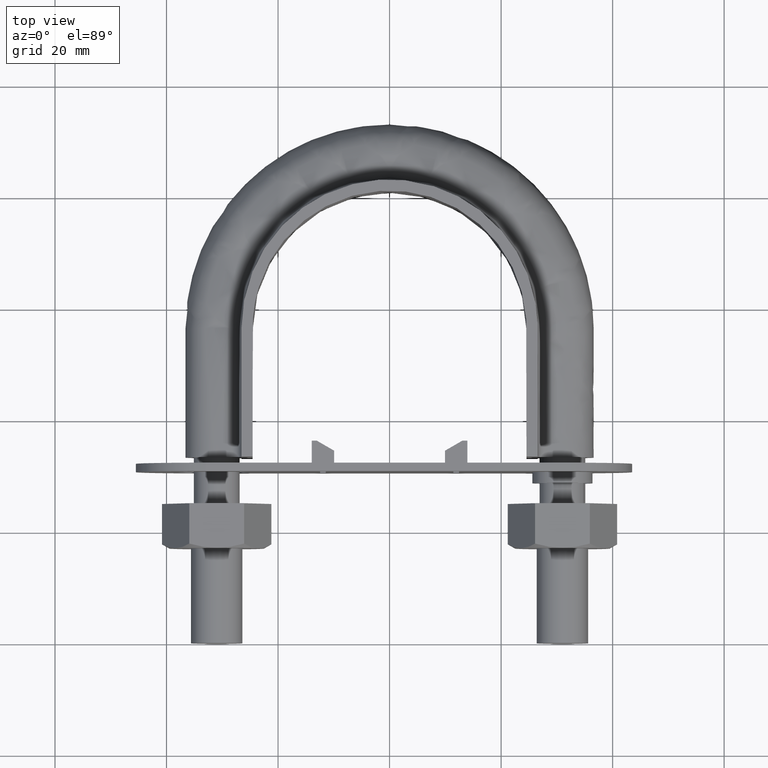
[diagram: clean part render]
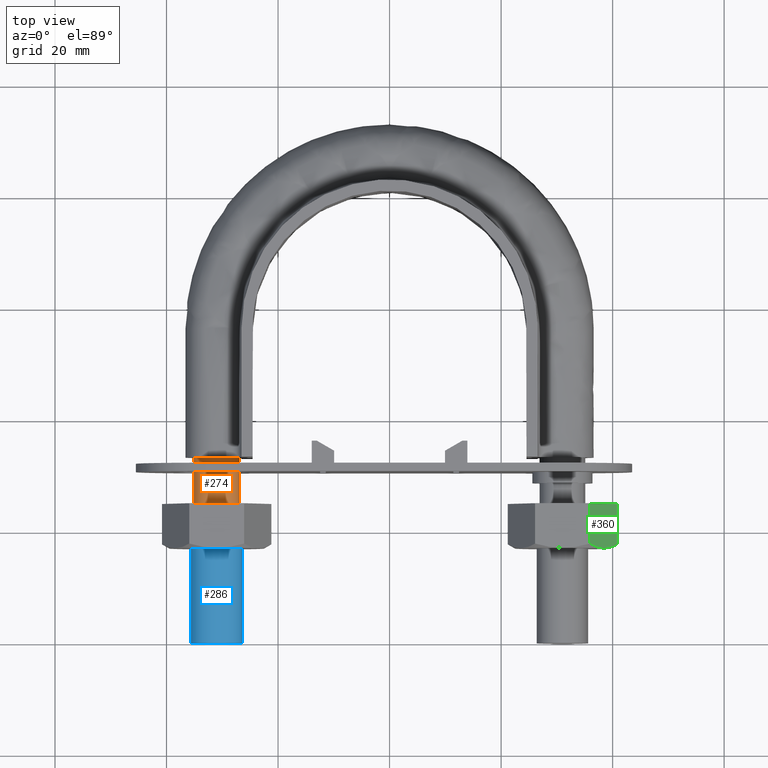
[diagram: same view with three faces highlighted in distinct colors, each labeled with its STEP entity id]
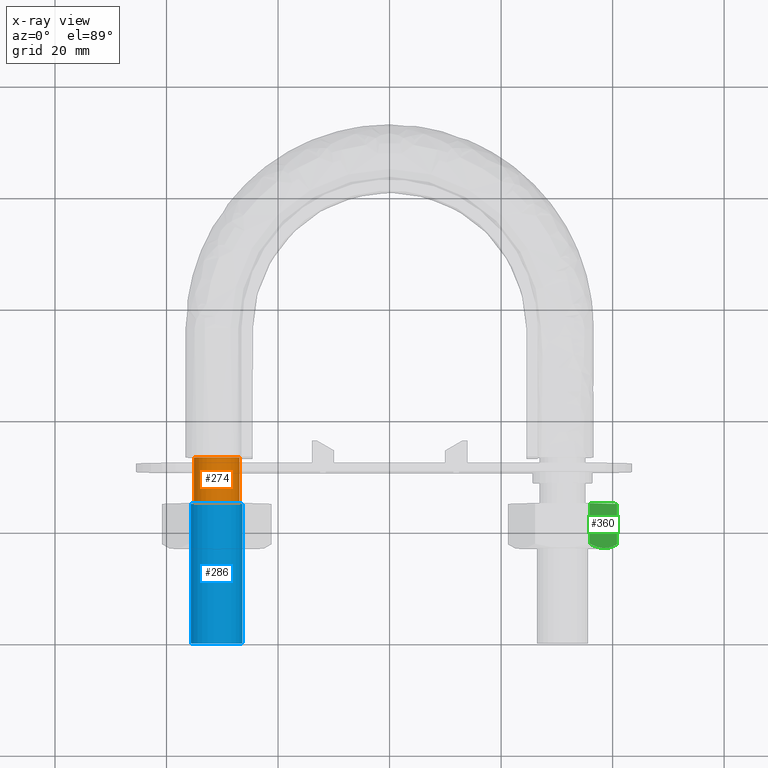
[diagram: x-ray of the same camera — body ghosted, the three highlighted faces saturated]
A machine part, top view with three faces highlighted in distinct colors.
The next image is the same camera in x-ray (body ghosted, the three faces saturated) — at least one of them is partly hidden behind the body in this view.
Their STEP definitions:

[orange] entity #274 — the highlighted cylindrical surface (bore or boss wall) has radius 4.1 mm, axis along (-0, -1, -0).
#274 = ADVANCED_FACE( '', ( #398, #399 ), #400, .T. );
#398 = FACE_OUTER_BOUND( '', #1331, .T. );
#399 = FACE_OUTER_BOUND( '', #1332, .T. );
#400 = CYLINDRICAL_SURFACE( '', #1333, 4.10000000000000 );
#1331 = EDGE_LOOP( '', ( #1778 ) );
#1332 = EDGE_LOOP( '', ( #1779, #1780, #1781, #1782, #1783, #1784, #1785 ) );
#1333 = AXIS2_PLACEMENT_3D( '', #1786, #1787, #1788 );
#1778 = ORIENTED_EDGE( '', *, *, #2559, .T. );
#1779 = ORIENTED_EDGE( '', *, *, #2560, .T. );
#1780 = ORIENTED_EDGE( '', *, *, #2561, .T. );
#1781 = ORIENTED_EDGE( '', *, *, #2562, .T. );
#1782 = ORIENTED_EDGE( '', *, *, #2563, .T. );
#1783 = ORIENTED_EDGE( '', *, *, #2564, .T. );
#1784 = ORIENTED_EDGE( '', *, *, #2565, .T. );
#1785 = ORIENTED_EDGE( '', *, *, #2566, .T. );
#1786 = CARTESIAN_POINT( '', ( -31.0000000000000, 33.3000000000000, 1.03938464280674E-014 ) );
#1787 = DIRECTION( '', ( -2.44921270764475E-016, -1.00000000000000, -3.06151588455594E-016 ) );
#1788 = DIRECTION( '', ( 1.00000000000000, -2.44921270764475E-016, -3.74915180455534E-032 ) );
#2559 = EDGE_CURVE( '', #2809, #2809, #2810, .T. );
#2560 = EDGE_CURVE( '', #2811, #2812, #2813, .T. );
#2561 = EDGE_CURVE( '', #2812, #2814, #2815, .T. );
#2562 = EDGE_CURVE( '', #2814, #2816, #2817, .T. );
#2563 = EDGE_CURVE( '', #2816, #2818, #2819, .T. );
#2564 = EDGE_CURVE( '', #2818, #2820, #2821, .T. );
#2565 = EDGE_CURVE( '', #2820, #2822, #2823, .T. );
#2566 = EDGE_CURVE( '', #2822, #2811, #2824, .T. );
#2809 = VERTEX_POINT( '', #3405 );
#2810 = CIRCLE( '', #3406, 4.10000000000000 );
#2811 = VERTEX_POINT( '', #3407 );
#2812 = VERTEX_POINT( '', #3408 );
#2813 = CIRCLE( '', #3409, 4.10000000000000 );
#2814 = VERTEX_POINT( '', #3410 );
#2815 = CIRCLE( '', #3411, 4.10000000000000 );
#2816 = VERTEX_POINT( '', #3412 );
#2817 = CIRCLE( '', #3413, 4.10000000000000 );
#2818 = VERTEX_POINT( '', #3414 );
#2819 = CIRCLE( '', #3415, 4.10000000000000 );
#2820 = VERTEX_POINT( '', #3416 );
#2821 = CIRCLE( '', #3417, 4.10000000000000 );
#2822 = VERTEX_POINT( '', #3418 );
#2823 = CIRCLE( '', #3419, 4.10000000000000 );
#2824 = CIRCLE( '', #3420, 4.10000000000000 );
#3405 = CARTESIAN_POINT( '', ( -31.0000000000000, 25.0000000000000, 4.10000000000001 ) );
#3406 = AXIS2_PLACEMENT_3D( '', #4055, #4056, #4057 );
#3407 = CARTESIAN_POINT( '', ( -26.9000000000000, 33.3000000000000, 5.33492735711505E-014 ) );
#3408 = CARTESIAN_POINT( '', ( -28.4436918123920, 33.3000000000000, 3.20550907812911 ) );
#3409 = AXIS2_PLACEMENT_3D( '', #4058, #4059, #4060 );
#3410 = CARTESIAN_POINT( '', ( -31.9123358292377, 33.3000000000000, 3.99720443994166 ) );
#3411 = AXIS2_PLACEMENT_3D( '', #4061, #4062, #4063 );
#3412 = CARTESIAN_POINT( '', ( -34.6939723584000, 33.3000000000000, 1.77892333038180 ) );
#3413 = AXIS2_PLACEMENT_3D( '', #4064, #4065, #4066 );
#3414 = CARTESIAN_POINT( '', ( -34.6939723583862, 33.3000000000000, -1.77892333041036 ) );
#3415 = AXIS2_PLACEMENT_3D( '', #4067, #4068, #4069 );
#3416 = CARTESIAN_POINT( '', ( -31.9123358292209, 33.3000000000000, -3.99720443994546 ) );
#3417 = AXIS2_PLACEMENT_3D( '', #4070, #4071, #4072 );
#3418 = CARTESIAN_POINT( '', ( -28.4436918123794, 33.3000000000000, -3.20550907811911 ) );
#3419 = AXIS2_PLACEMENT_3D( '', #4073, #4074, #4075 );
#3420 = AXIS2_PLACEMENT_3D( '', #4076, #4077, #4078 );
#4055 = CARTESIAN_POINT( '', ( -31.0000000000000, 25.0000000000000, 7.85278824388600E-015 ) );
#4056 = DIRECTION( '', ( 2.44921270764475E-016, 1.00000000000000, 3.06151588455594E-016 ) );
#4057 = DIRECTION( '', ( -3.74915180455534E-032, -3.06151588455594E-016, 1.00000000000000 ) );
#4058 = CARTESIAN_POINT( '', ( -31.0000000000000, 33.3000000000000, 1.03938464280674E-014 ) );
#4059 = DIRECTION( '', ( -2.44921270764475E-016, -1.00000000000000, -3.06151588455594E-016 ) );
#4060 = DIRECTION( '', ( 1.00000000000000, -2.44921270764475E-016, -3.74915180455534E-032 ) );
#4061 = CARTESIAN_POINT( '', ( -31.0000000000000, 33.3000000000000, 1.03938464280674E-014 ) );
#4062 = DIRECTION( '', ( -2.44921270764475E-016, -1.00000000000000, -3.06151588455594E-016 ) );
#4063 = DIRECTION( '', ( 1.00000000000000, -2.44921270764475E-016, -3.74915180455534E-032 ) );
#4064 = CARTESIAN_POINT( '', ( -31.0000000000000, 33.3000000000000, 1.03938464280674E-014 ) );
#4065 = DIRECTION( '', ( -2.44921270764475E-016, -1.00000000000000, -3.06151588455594E-016 ) );
#4066 = DIRECTION( '', ( 1.00000000000000, -2.44921270764475E-016, -3.74915180455534E-032 ) );
#4067 = CARTESIAN_POINT( '', ( -31.0000000000000, 33.3000000000000, 1.03938464280674E-014 ) );
#4068 = DIRECTION( '', ( -2.44921270764475E-016, -1.00000000000000, -3.06151588455594E-016 ) );
#4069 = DIRECTION( '', ( 1.00000000000000, -2.44921270764475E-016, -3.74915180455534E-032 ) );
#4070 = CARTESIAN_POINT( '', ( -31.0000000000000, 33.3000000000000, 1.03938464280674E-014 ) );
#4071 = DIRECTION( '', ( -2.44921270764475E-016, -1.00000000000000, -3.06151588455594E-016 ) );
#4072 = DIRECTION( '', ( 1.00000000000000, -2.44921270764475E-016, -3.74915180455534E-032 ) );
#4073 = CARTESIAN_POINT( '', ( -31.0000000000000, 33.3000000000000, 1.03938464280674E-014 ) );
#4074 = DIRECTION( '', ( -2.44921270764475E-016, -1.00000000000000, -3.06151588455594E-016 ) );
#4075 = DIRECTION( '', ( 1.00000000000000, -2.44921270764475E-016, -3.74915180455534E-032 ) );
#4076 = CARTESIAN_POINT( '', ( -31.0000000000000, 33.3000000000000, 1.03938464280674E-014 ) );
#4077 = DIRECTION( '', ( -2.44921270764475E-016, -1.00000000000000, -3.06151588455594E-016 ) );
#4078 = DIRECTION( '', ( 1.00000000000000, -2.44921270764475E-016, -3.74915180455534E-032 ) );

[blue] entity #286 — the highlighted cylindrical surface (bore or boss wall) has radius 4.6 mm, axis along (-0, -1, -0).
#286 = ADVANCED_FACE( '', ( #426, #427 ), #428, .T. );
#426 = FACE_OUTER_BOUND( '', #1508, .T. );
#427 = FACE_OUTER_BOUND( '', #1509, .T. );
#428 = CYLINDRICAL_SURFACE( '', #1510, 4.60000000000000 );
#1508 = EDGE_LOOP( '', ( #1859 ) );
#1509 = EDGE_LOOP( '', ( #1860 ) );
#1510 = AXIS2_PLACEMENT_3D( '', #1861, #1862, #1863 );
#1859 = ORIENTED_EDGE( '', *, *, #2590, .F. );
#1860 = ORIENTED_EDGE( '', *, *, #2569, .T. );
#1861 = CARTESIAN_POINT( '', ( -31.0000000000000, 25.0000000000000, 7.85278824388600E-015 ) );
#1862 = DIRECTION( '', ( -2.44921270764475E-016, -1.00000000000000, -3.06151588455594E-016 ) );
#1863 = DIRECTION( '', ( 1.00000000000000, -2.44921270764475E-016, -3.74915180455534E-032 ) );
#2569 = EDGE_CURVE( '', #2829, #2829, #2830, .T. );
#2590 = EDGE_CURVE( '', #2857, #2857, #2858, .T. );
#2829 = VERTEX_POINT( '', #3428 );
#2830 = CIRCLE( '', #3429, 4.60000000000000 );
#2857 = VERTEX_POINT( '', #3495 );
#2858 = CIRCLE( '', #3496, 4.60000000000000 );
#3428 = CARTESIAN_POINT( '', ( -26.4000000000000, 25.0000000000000, 7.85278824388600E-015 ) );
#3429 = AXIS2_PLACEMENT_3D( '', #4082, #4083, #4084 );
#3495 = CARTESIAN_POINT( '', ( -26.4000000000000, 6.46592154818215E-015, 1.98998532496137E-016 ) );
#3496 = AXIS2_PLACEMENT_3D( '', #4106, #4107, #4108 );
#4082 = CARTESIAN_POINT( '', ( -31.0000000000000, 25.0000000000000, 7.85278824388600E-015 ) );
#4083 = DIRECTION( '', ( -2.44921270764475E-016, -1.00000000000000, -3.06151588455594E-016 ) );
#4084 = DIRECTION( '', ( 1.00000000000000, -2.44921270764475E-016, -3.74915180455534E-032 ) );
#4106 = CARTESIAN_POINT( '', ( -31.0000000000000, 7.59255939369874E-015, 1.98998532496137E-016 ) );
#4107 = DIRECTION( '', ( -2.44921270764475E-016, -1.00000000000000, -3.06151588455594E-016 ) );
#4108 = DIRECTION( '', ( 1.00000000000000, -2.44921270764475E-016, -3.74915180455534E-032 ) );

[green] entity #360 — the highlighted planar face has unit normal (-0.866, 0, -0.5).
#360 = ADVANCED_FACE( '', ( #593 ), #594, .F. );
#593 = FACE_OUTER_BOUND( '', #1675, .T. );
#594 = PLANE( '', #1676 );
#1675 = EDGE_LOOP( '', ( #2394, #2395, #2396, #2397, #2398 ) );
#1676 = AXIS2_PLACEMENT_3D( '', #2399, #2400, #2401 );
#2394 = ORIENTED_EDGE( '', *, *, #2745, .F. );
#2395 = ORIENTED_EDGE( '', *, *, #2746, .F. );
#2396 = ORIENTED_EDGE( '', *, *, #2744, .F. );
#2397 = ORIENTED_EDGE( '', *, *, #2747, .F. );
#2398 = ORIENTED_EDGE( '', *, *, #2748, .F. );
#2399 = CARTESIAN_POINT( '', ( 35.9074772880412, 25.0000000000000, 8.50000000004037 ) );
#2400 = DIRECTION( '', ( -0.866025403780302, 3.65183836638180E-016, -0.500000000007165 ) );
#2401 = DIRECTION( '', ( -0.500000000007165, 0.000000000000000, 0.866025403780302 ) );
#2744 = EDGE_CURVE( '', #3117, #3112, #3119, .T. );
#2745 = EDGE_CURVE( '', #3120, #3121, #3122, .T. );
#2746 = EDGE_CURVE( '', #3112, #3120, #3123, .T. );
#2747 = EDGE_CURVE( '', #3124, #3117, #3125, .T. );
#2748 = EDGE_CURVE( '', #3121, #3124, #3126, .F. );
#3112 = VERTEX_POINT( '', #3918 );
#3117 = VERTEX_POINT( '', #3924 );
#3119 = LINE( '', #3926, #3927 );
#3120 = VERTEX_POINT( '', #3928 );
#3121 = VERTEX_POINT( '', #3929 );
#3122 = B_SPLINE_CURVE_WITH_KNOTS( '', 3, ( #3930, #3931, #3932, #3933, #3934, #3935 ), .UNSPECIFIED., .F., .F., ( 4, 2, 4 ), ( 1.74337551706054E-017, 0.00246745482903624, 0.00493490965807245 ), .UNSPECIFIED. );
#3123 = B_SPLINE_CURVE_WITH_KNOTS( '', 3, ( #3936, #3937, #3938, #3939, #3940, #3941 ), .UNSPECIFIED., .F., .F., ( 4, 2, 4 ), ( 3.24912493265351E-016, 0.00246745482903621, 0.00493490965807210 ), .UNSPECIFIED. );
#3124 = VERTEX_POINT( '', #3942 );
#3125 = LINE( '', #3943, #3944 );
#3126 = LINE( '', #3945, #3946 );
#3918 = CARTESIAN_POINT( '', ( 40.7999656118188, 17.7505553499467, 0.0259616479819914 ) );
#3924 = CARTESIAN_POINT( '', ( 40.7999656118189, 25.0000000000000, 0.0259616479817251 ) );
#3926 = CARTESIAN_POINT( '', ( 40.7999656118190, 25.0000000000000, 0.0259616479817227 ) );
#3927 = VECTOR( '', #4335, 1000.00000000000 );
#3928 = CARTESIAN_POINT( '', ( 38.3612159321324, 17.0000000000002, 4.25000000006080 ) );
#3929 = CARTESIAN_POINT( '', ( 35.9224662524457, 17.7505553499467, 8.47403835213944 ) );
#3930 = CARTESIAN_POINT( '', ( 38.3612159321322, 17.0000000000001, 4.25000000006071 ) );
#3931 = CARTESIAN_POINT( '', ( 37.9451329570309, 17.0000000000001, 4.97067685308689 ) );
#3932 = CARTESIAN_POINT( '', ( 37.5345628082775, 17.0716504305291, 5.68180521078529 ) );
#3933 = CARTESIAN_POINT( '', ( 36.7224943442772, 17.3328582843708, 7.08834904963133 ) );
#3934 = CARTESIAN_POINT( '', ( 36.3209300787644, 17.5215585493657, 7.78387875999031 ) );
#3935 = CARTESIAN_POINT( '', ( 35.9224662524459, 17.7505553499466, 8.47403835213916 ) );
#3936 = CARTESIAN_POINT( '', ( 40.7999656118186, 17.7505553499466, 0.0259616479822632 ) );
#3937 = CARTESIAN_POINT( '', ( 40.4015017855001, 17.5215585493658, 0.716121240131021 ) );
#3938 = CARTESIAN_POINT( '', ( 39.9999375199871, 17.3328582843707, 1.41165095049047 ) );
#3939 = CARTESIAN_POINT( '', ( 39.1878690559869, 17.0716504305291, 2.81819478933632 ) );
#3940 = CARTESIAN_POINT( '', ( 38.7772989072335, 17.0000000000001, 3.52932314703462 ) );
#3941 = CARTESIAN_POINT( '', ( 38.3612159321322, 17.0000000000001, 4.25000000006071 ) );
#3942 = CARTESIAN_POINT( '', ( 35.9224662524455, 25.0000000000000, 8.47403835213973 ) );
#3943 = CARTESIAN_POINT( '', ( 40.8112159321673, 25.0000000000000, 0.00647552153730177 ) );
#3944 = VECTOR( '', #4336, 1000.00000000000 );
#3945 = CARTESIAN_POINT( '', ( 35.9224662524455, 25.0000000000000, 8.47403835213973 ) );
#3946 = VECTOR( '', #4337, 1000.00000000000 );
#4335 = DIRECTION( '', ( -2.44921270764475E-016, -1.00000000000000, -3.06151588455594E-016 ) );
#4336 = DIRECTION( '', ( 0.500000000007165, 1.42674417626244E-016, -0.866025403780302 ) );
#4337 = DIRECTION( '', ( -2.44921270764475E-016, -1.00000000000000, -3.06151588455594E-016 ) );